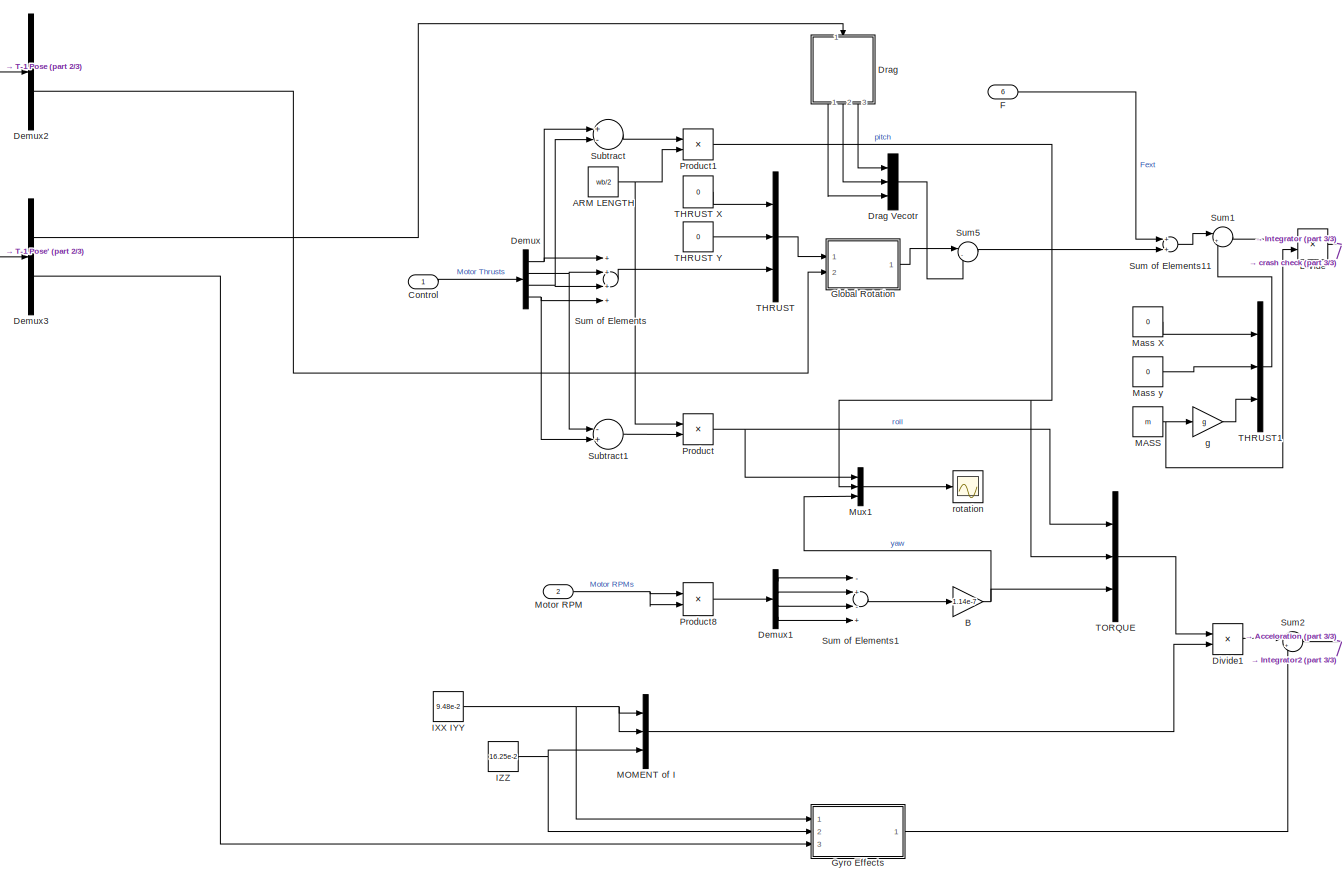
[diagram: root canvas - part 1/3, left side, full height]
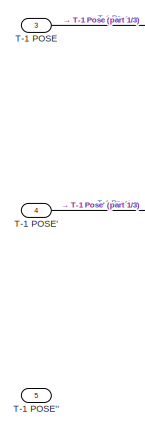
[diagram: root canvas - part 2/3, top left region]
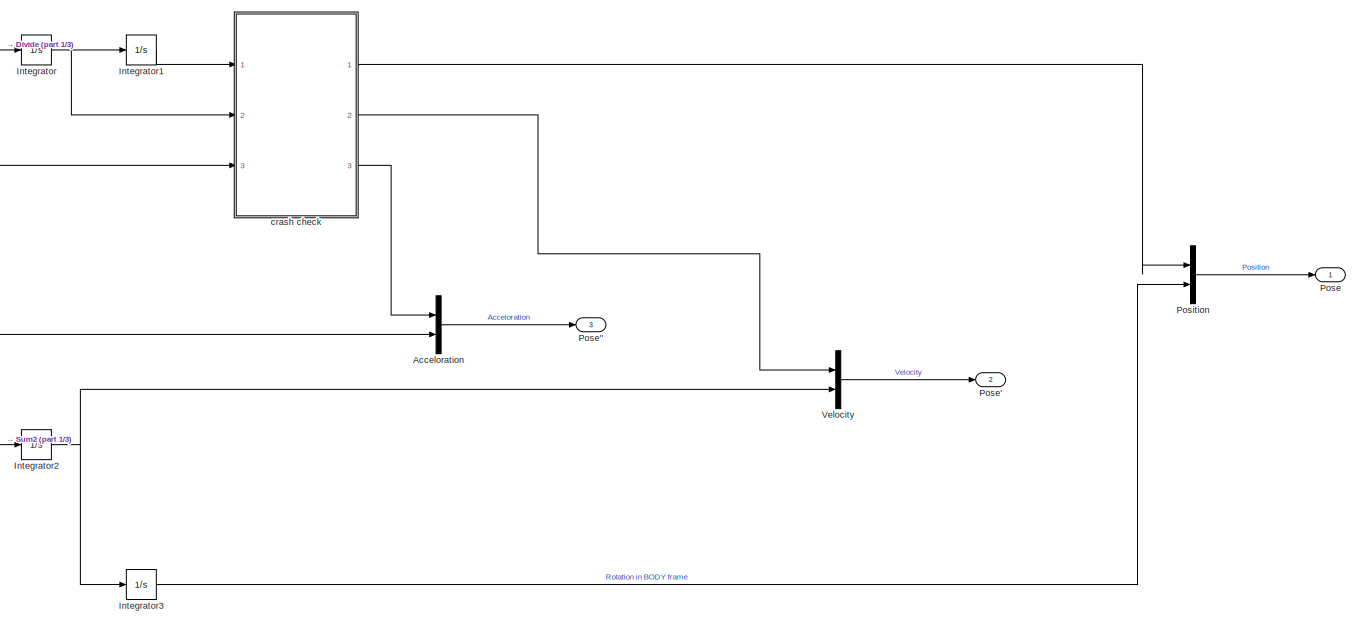
[diagram: root canvas - part 3/3, middle right region]
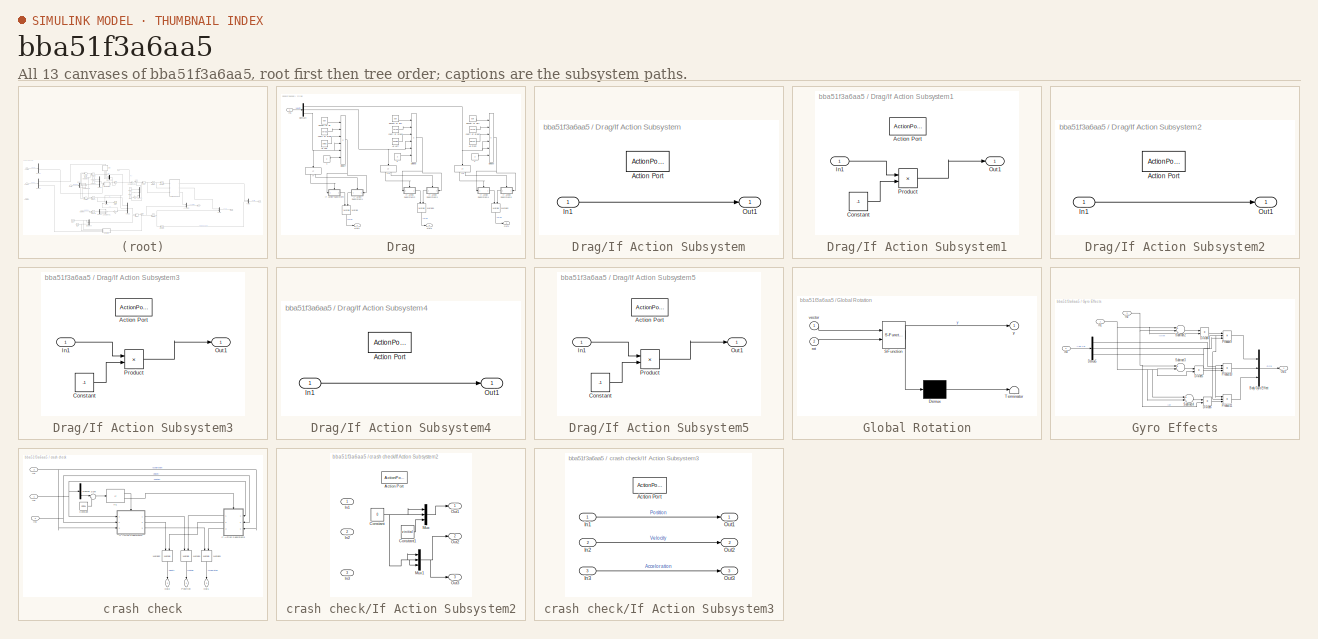
[diagram: thumbnail index - all 13 canvases of the model, root first then tree order]
MODEL slx_bba51f3a6aa5
KIND model
CONFIG AbsTol = auto
CONFIG EnableMultiTasking = off
CONFIG FixedStep = interval
CONFIG MaxStep = auto
CONFIG MinStep = auto
CONFIG RelTol = 1e-3
CONFIG SampleTimeConstraint = Unconstrained
CONFIG Solver = FixedStepAuto
CONFIG SolverName = FixedStepAuto
CONFIG StartTime = 0.0
CONFIG StopTime = 10.0
BLOCK [Constant] ARM LENGTH
  Value = wb/2
BLOCK [Mux] Acceloration
  DisplayOption = bar
  Inputs = 2
  Ports = [2, 1]
BLOCK [Gain] B
  Gain = 1.14e-7
  OutDataTypeStr = Inherit: Inherit via internal rule
  ParamDataTypeStr = Inherit: Inherit via internal rule
  SaturateOnIntegerOverflow = off
BLOCK [Inport] Control
  AttributesFormatString = 4x1 vector motor thrust
  IconDisplay = Port number
  PortDimensions = 4
BLOCK [Demux] Demux
  DisplayOption = bar
  Ports = [1, 4]
BLOCK [Demux] Demux1
  DisplayOption = bar
  Ports = [1, 4]
BLOCK [Demux] Demux2
  DisplayOption = bar
  Outputs = 2
  Ports = [1, 2]
BLOCK [Demux] Demux3
  DisplayOption = bar
  Outputs = 2
  Ports = [1, 2]
BLOCK [Product] Divide
  InputSameDT = off
  Inputs = */
  OutDataTypeStr = Inherit: Inherit via internal rule
  Ports = [2, 1]
  RndMeth = Floor
  SaturateOnIntegerOverflow = off
BLOCK [Product] Divide1
  InputSameDT = off
  Inputs = */
  OutDataTypeStr = Inherit: Inherit via internal rule
  Ports = [2, 1]
  RndMeth = Floor
  SaturateOnIntegerOverflow = off
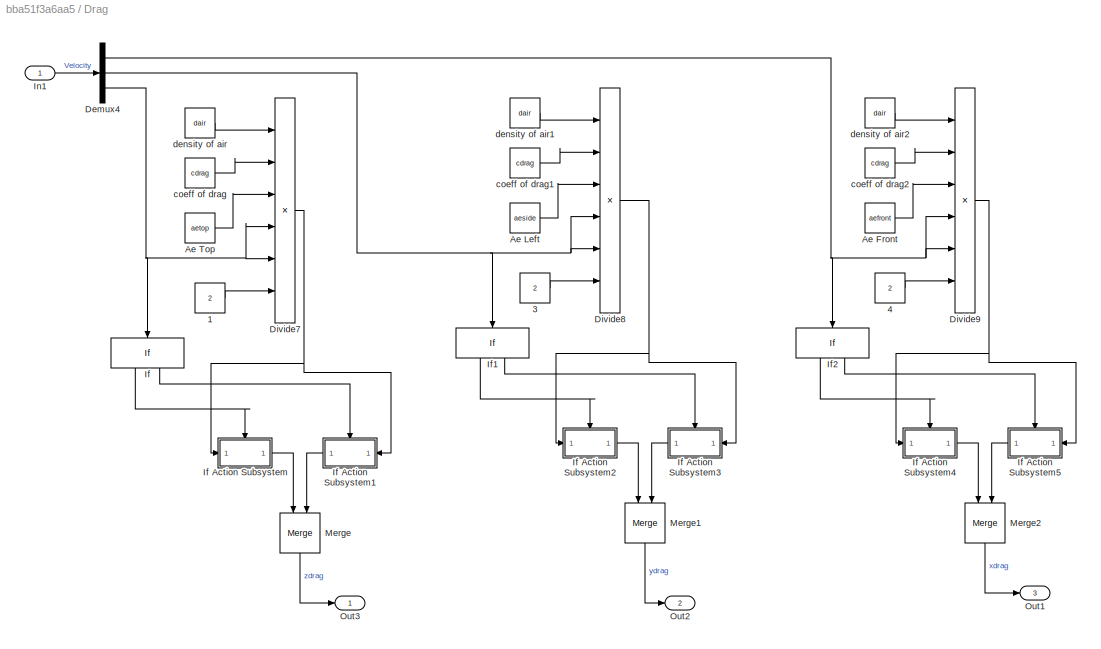
BLOCK [SubSystem] Drag
  Ports = [1, 3]
  RequestExecContextInheritance = off
  Variant = off
BLOCK [Mux] Drag Vecotr
  DisplayOption = bar
  Inputs = 3
  Ports = [3, 1]
BLOCK [Constant] Drag/1
  Value = 2
BLOCK [Constant] Drag/3
  Value = 2
BLOCK [Constant] Drag/4
  Value = 2
BLOCK [Constant] Drag/Ae Front
  Value = aefront
BLOCK [Constant] Drag/Ae Left
  Value = aeside
BLOCK [Constant] Drag/Ae Top
  Value = aetop
BLOCK [Demux] Drag/Demux4
  DisplayOption = bar
  Outputs = 3
  Ports = [1, 3]
BLOCK [Product] Drag/Divide7
  InputSameDT = off
  Inputs = *****/
  OutDataTypeStr = Inherit: Inherit via internal rule
  Ports = [6, 1]
  RndMeth = Floor
  SaturateOnIntegerOverflow = off
BLOCK [Product] Drag/Divide8
  InputSameDT = off
  Inputs = *****/
  OutDataTypeStr = Inherit: Inherit via internal rule
  Ports = [6, 1]
  RndMeth = Floor
  SaturateOnIntegerOverflow = off
BLOCK [Product] Drag/Divide9
  InputSameDT = off
  Inputs = *****/
  OutDataTypeStr = Inherit: Inherit via internal rule
  Ports = [6, 1]
  RndMeth = Floor
  SaturateOnIntegerOverflow = off
BLOCK [If] Drag/If
  IfExpression = u1 < 0
  Ports = [1, 2]
BLOCK [SubSystem] Drag/If Action Subsystem
  Ports = [1, 1, 0, 0, 0, 0, 0, 1]
  RequestExecContextInheritance = off
  TreatAsAtomicUnit = on
  Variant = off
BLOCK [ActionPort] Drag/If Action Subsystem/Action Port
  ActionType = then
BLOCK [Inport] Drag/If Action Subsystem/In1
  IconDisplay = Port number
BLOCK [Outport] Drag/If Action Subsystem/Out1
  IconDisplay = Port number
BLOCK [SubSystem] Drag/If Action Subsystem1
  Ports = [1, 1, 0, 0, 0, 0, 0, 1]
  RequestExecContextInheritance = off
  TreatAsAtomicUnit = on
  Variant = off
BLOCK [ActionPort] Drag/If Action Subsystem1/Action Port
  ActionType = else
BLOCK [Constant] Drag/If Action Subsystem1/Constant
  Value = -1
BLOCK [Inport] Drag/If Action Subsystem1/In1
  IconDisplay = Port number
BLOCK [Outport] Drag/If Action Subsystem1/Out1
  IconDisplay = Port number
BLOCK [Product] Drag/If Action Subsystem1/Product
  InputSameDT = off
  OutDataTypeStr = Inherit: Inherit via internal rule
  Ports = [2, 1]
  RndMeth = Floor
  SaturateOnIntegerOverflow = off
BLOCK [SubSystem] Drag/If Action Subsystem2
  Ports = [1, 1, 0, 0, 0, 0, 0, 1]
  RequestExecContextInheritance = off
  TreatAsAtomicUnit = on
  Variant = off
BLOCK [ActionPort] Drag/If Action Subsystem2/Action Port
  ActionType = then
BLOCK [Inport] Drag/If Action Subsystem2/In1
  IconDisplay = Port number
BLOCK [Outport] Drag/If Action Subsystem2/Out1
  IconDisplay = Port number
BLOCK [SubSystem] Drag/If Action Subsystem3
  Ports = [1, 1, 0, 0, 0, 0, 0, 1]
  RequestExecContextInheritance = off
  TreatAsAtomicUnit = on
  Variant = off
BLOCK [ActionPort] Drag/If Action Subsystem3/Action Port
  ActionType = else
BLOCK [Constant] Drag/If Action Subsystem3/Constant
  Value = -1
BLOCK [Inport] Drag/If Action Subsystem3/In1
  IconDisplay = Port number
BLOCK [Outport] Drag/If Action Subsystem3/Out1
  IconDisplay = Port number
BLOCK [Product] Drag/If Action Subsystem3/Product
  InputSameDT = off
  OutDataTypeStr = Inherit: Inherit via internal rule
  Ports = [2, 1]
  RndMeth = Floor
  SaturateOnIntegerOverflow = off
BLOCK [SubSystem] Drag/If Action Subsystem4
  Ports = [1, 1, 0, 0, 0, 0, 0, 1]
  RequestExecContextInheritance = off
  TreatAsAtomicUnit = on
  Variant = off
BLOCK [ActionPort] Drag/If Action Subsystem4/Action Port
  ActionType = then
BLOCK [Inport] Drag/If Action Subsystem4/In1
  IconDisplay = Port number
BLOCK [Outport] Drag/If Action Subsystem4/Out1
  IconDisplay = Port number
BLOCK [SubSystem] Drag/If Action Subsystem5
  Ports = [1, 1, 0, 0, 0, 0, 0, 1]
  RequestExecContextInheritance = off
  TreatAsAtomicUnit = on
  Variant = off
BLOCK [ActionPort] Drag/If Action Subsystem5/Action Port
  ActionType = else
BLOCK [Constant] Drag/If Action Subsystem5/Constant
  Value = -1
BLOCK [Inport] Drag/If Action Subsystem5/In1
  IconDisplay = Port number
BLOCK [Outport] Drag/If Action Subsystem5/Out1
  IconDisplay = Port number
BLOCK [Product] Drag/If Action Subsystem5/Product
  InputSameDT = off
  OutDataTypeStr = Inherit: Inherit via internal rule
  Ports = [2, 1]
  RndMeth = Floor
  SaturateOnIntegerOverflow = off
BLOCK [If] Drag/If1
  IfExpression = u1 < 0
  Ports = [1, 2]
BLOCK [If] Drag/If2
  IfExpression = u1 < 0
  Ports = [1, 2]
BLOCK [Inport] Drag/In1
  IconDisplay = Signal name
BLOCK [Merge] Drag/Merge
  Ports = [2, 1]
BLOCK [Merge] Drag/Merge1
  Ports = [2, 1]
BLOCK [Merge] Drag/Merge2
  Ports = [2, 1]
BLOCK [Outport] Drag/Out1
  IconDisplay = Signal name
  Port = 3
BLOCK [Outport] Drag/Out2
  IconDisplay = Signal name
  Port = 2
BLOCK [Outport] Drag/Out3
  IconDisplay = Signal name
BLOCK [Constant] Drag/coeff of drag
  Value = cdrag
BLOCK [Constant] Drag/coeff of drag1
  Value = cdrag
BLOCK [Constant] Drag/coeff of drag2
  Value = cdrag
BLOCK [Constant] Drag/density of air
  Value = dair
BLOCK [Constant] Drag/density of air1
  Value = dair
BLOCK [Constant] Drag/density of air2
  Value = dair
BLOCK [Inport] F
  AttributesFormatString = 3x1 external force vector. transpose([x,y,z])
  IconDisplay = Port number
  Port = 6
  PortDimensions = 3
BLOCK [SubSystem] Global Rotation
  ErrorFcn = Stateflow.Translate.translate
  PermitHierarchicalResolution = ExplicitOnly
  Ports = [2, 1]
  RequestExecContextInheritance = off
  SFBlockType = MATLAB Function
  TreatAsAtomicUnit = on
  Variant = off
BLOCK [Demux] Global Rotation/ Demux 
  Outputs = 1
  Ports = [1, 1]
BLOCK [S-Function] Global Rotation/ SFunction 
  EnableBusSupport = on
  FunctionName = sf_sfun
  PortCounts = [2 2]
  Ports = [2, 2]
  SFcnIsStateOwnerBlock = off
  SFunctionDeploymentMode = off
  Tag = Stateflow S-Function QC_Dynamics 2
BLOCK [Terminator] Global Rotation/ Terminator 
BLOCK [Inport] Global Rotation/rot
  IconDisplay = Port number
  Port = 2
BLOCK [Inport] Global Rotation/vector
  IconDisplay = Port number
BLOCK [Outport] Global Rotation/y
  IconDisplay = Port number
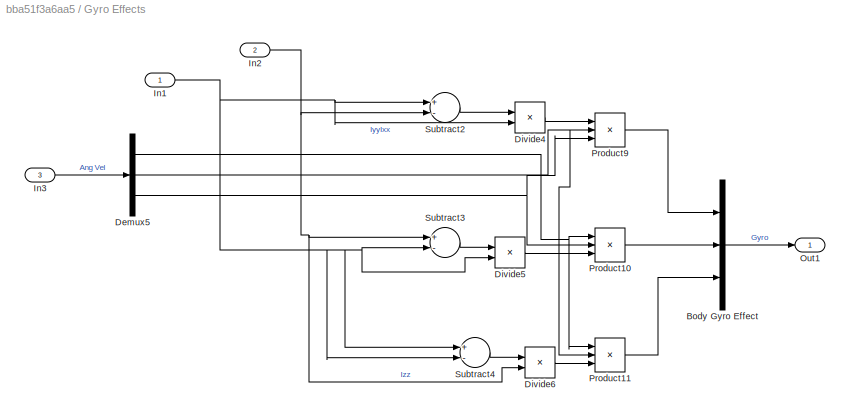
BLOCK [SubSystem] Gyro Effects
  Ports = [3, 1]
  RequestExecContextInheritance = off
  Variant = off
BLOCK [Mux] Gyro Effects/Body Gyro Effect
  DisplayOption = bar
  Inputs = 3
  Ports = [3, 1]
BLOCK [Demux] Gyro Effects/Demux5
  DisplayOption = bar
  Outputs = 3
  Ports = [1, 3]
BLOCK [Product] Gyro Effects/Divide4
  InputSameDT = off
  Inputs = */
  OutDataTypeStr = Inherit: Inherit via internal rule
  Ports = [2, 1]
  RndMeth = Floor
  SaturateOnIntegerOverflow = off
BLOCK [Product] Gyro Effects/Divide5
  InputSameDT = off
  Inputs = */
  OutDataTypeStr = Inherit: Inherit via internal rule
  Ports = [2, 1]
  RndMeth = Floor
  SaturateOnIntegerOverflow = off
BLOCK [Product] Gyro Effects/Divide6
  InputSameDT = off
  Inputs = */
  OutDataTypeStr = Inherit: Inherit via internal rule
  Ports = [2, 1]
  RndMeth = Floor
  SaturateOnIntegerOverflow = off
BLOCK [Inport] Gyro Effects/In1
  IconDisplay = Signal name
BLOCK [Inport] Gyro Effects/In2
  IconDisplay = Signal name
  Port = 2
BLOCK [Inport] Gyro Effects/In3
  IconDisplay = Signal name
  Port = 3
BLOCK [Outport] Gyro Effects/Out1
  IconDisplay = Signal name
BLOCK [Product] Gyro Effects/Product10
  InputSameDT = off
  Inputs = 3
  OutDataTypeStr = Inherit: Inherit via internal rule
  Ports = [3, 1]
  RndMeth = Floor
  SaturateOnIntegerOverflow = off
BLOCK [Product] Gyro Effects/Product11
  InputSameDT = off
  Inputs = 3
  OutDataTypeStr = Inherit: Inherit via internal rule
  Ports = [3, 1]
  RndMeth = Floor
  SaturateOnIntegerOverflow = off
BLOCK [Product] Gyro Effects/Product9
  InputSameDT = off
  Inputs = 3
  OutDataTypeStr = Inherit: Inherit via internal rule
  Ports = [3, 1]
  RndMeth = Floor
  SaturateOnIntegerOverflow = off
BLOCK [Sum] Gyro Effects/Subtract2
  InputSameDT = off
  Inputs = +-
  OutDataTypeStr = Inherit: Inherit via internal rule
  Ports = [2, 1]
  SaturateOnIntegerOverflow = off
BLOCK [Sum] Gyro Effects/Subtract3
  InputSameDT = off
  Inputs = +-
  OutDataTypeStr = Inherit: Inherit via internal rule
  Ports = [2, 1]
  SaturateOnIntegerOverflow = off
BLOCK [Sum] Gyro Effects/Subtract4
  InputSameDT = off
  Inputs = +-
  OutDataTypeStr = Inherit: Inherit via internal rule
  Ports = [2, 1]
  SaturateOnIntegerOverflow = off
BLOCK [Constant] IXX IYY
  Value = 9.48e-2
BLOCK [Constant] IZZ
  Value = 16.25e-2
BLOCK [Integrator] Integrator
  Ports = [1, 1]
BLOCK [Integrator] Integrator1
  Ports = [1, 1]
BLOCK [Integrator] Integrator2
  Ports = [1, 1]
BLOCK [Integrator] Integrator3
  Ports = [1, 1]
BLOCK [Constant] MASS
  Value = m
BLOCK [Mux] MOMENT of I
  DisplayOption = bar
  Inputs = 3
  Ports = [3, 1]
BLOCK [Constant] Mass X
  Value = 0
BLOCK [Constant] Mass y
  Value = 0
BLOCK [Inport] Motor RPM
  AttributesFormatString = 4x1 vector rpm
  IconDisplay = Port number
  Port = 2
  PortDimensions = 4
BLOCK [Mux] Mux1
  DisplayOption = bar
  Inputs = 3
  Ports = [3, 1]
BLOCK [Outport] Pose
  AttributesFormatString = 6x1 true position vector, transpose([x,y,z,phi,theta,psi])
  IconDisplay = Port number
BLOCK [Outport] Pose'
  AttributesFormatString = 6x1 true velocity vector, transpose([x,y,z,phi,theta,psi])
  IconDisplay = Port number
  Port = 2
BLOCK [Outport] Pose''
  AttributesFormatString = 6x1 true acceloration vector, transpose([x,y,z,phi,theta,psi])
  IconDisplay = Port number
  Port = 3
BLOCK [Mux] Position
  DisplayOption = bar
  Inputs = 2
  Ports = [2, 1]
BLOCK [Product] Product
  InputSameDT = off
  OutDataTypeStr = Inherit: Inherit via internal rule
  Ports = [2, 1]
  RndMeth = Floor
  SaturateOnIntegerOverflow = off
BLOCK [Product] Product1
  InputSameDT = off
  OutDataTypeStr = Inherit: Inherit via internal rule
  Ports = [2, 1]
  RndMeth = Floor
  SaturateOnIntegerOverflow = off
BLOCK [Product] Product8
  InputSameDT = off
  OutDataTypeStr = Inherit: Inherit via internal rule
  Ports = [2, 1]
  RndMeth = Floor
  SaturateOnIntegerOverflow = off
BLOCK [Sum] Subtract
  InputSameDT = off
  Inputs = +-
  OutDataTypeStr = Inherit: Inherit via internal rule
  Ports = [2, 1]
  SaturateOnIntegerOverflow = off
BLOCK [Sum] Subtract1
  InputSameDT = off
  Inputs = -+
  OutDataTypeStr = Inherit: Inherit via internal rule
  Ports = [2, 1]
  SaturateOnIntegerOverflow = off
BLOCK [Sum] Sum of Elements
  InputSameDT = off
  Inputs = ++++
  OutDataTypeStr = Inherit: Inherit via internal rule
  Ports = [4, 1]
  SaturateOnIntegerOverflow = off
BLOCK [Sum] Sum of Elements1
  InputSameDT = off
  Inputs = -+-+
  OutDataTypeStr = Inherit: Inherit via internal rule
  Ports = [4, 1]
  SaturateOnIntegerOverflow = off
BLOCK [Sum] Sum of Elements11
  InputSameDT = off
  OutDataTypeStr = Inherit: Inherit via internal rule
  Ports = [2, 1]
  SaturateOnIntegerOverflow = off
BLOCK [Sum] Sum1
  IconShape = round
  InputSameDT = off
  Inputs = |++
  OutDataTypeStr = Inherit: Inherit via internal rule
  Ports = [2, 1]
  SaturateOnIntegerOverflow = off
BLOCK [Sum] Sum2
  IconShape = round
  InputSameDT = off
  Inputs = |+-
  OutDataTypeStr = Inherit: Inherit via internal rule
  Ports = [2, 1]
  SaturateOnIntegerOverflow = off
BLOCK [Sum] Sum5
  IconShape = round
  InputSameDT = off
  Inputs = |-+
  OutDataTypeStr = Inherit: Inherit via internal rule
  Ports = [2, 1]
  SaturateOnIntegerOverflow = off
BLOCK [Inport] T-1 POSE
  AttributesFormatString = 6x1 position vector. transpose([x,y,z,phi,theta,psi])
  IconDisplay = Port number
  Port = 3
  PortDimensions = 6
BLOCK [Inport] T-1 POSE'
  AttributesFormatString = 6x1 velocity vector. transpose([x,y,z,phi,theta,psi])
  IconDisplay = Port number
  Port = 4
  PortDimensions = 6
BLOCK [Inport] T-1 POSE''
  AttributesFormatString = 6x1 acceloration vector. transpose([x,y,z,phi,theta,psi])
  IconDisplay = Port number
  Port = 5
  PortDimensions = 6
BLOCK [Mux] THRUST
  DisplayOption = bar
  Inputs = 3
  Ports = [3, 1]
BLOCK [Constant] THRUST X
  Value = 0
BLOCK [Constant] THRUST Y
  Value = 0
BLOCK [Mux] THRUST1
  DisplayOption = bar
  Inputs = 3
  Ports = [3, 1]
BLOCK [Mux] TORQUE
  DisplayOption = bar
  Inputs = 3
  Ports = [3, 1]
BLOCK [Mux] Velocity
  DisplayOption = bar
  Inputs = 2
  Ports = [2, 1]
BLOCK [SubSystem] crash check
  Ports = [3, 3]
  RequestExecContextInheritance = off
  Variant = off
BLOCK [Constant] crash check/Constant
  Value = zinitial
BLOCK [Demux] crash check/Demux
  DisplayOption = bar
  Outputs = 3
  Ports = [1, 3]
BLOCK [SubSystem] crash check/If Action Subsystem2
  Ports = [3, 3, 0, 0, 0, 0, 0, 1]
  RequestExecContextInheritance = off
  TreatAsAtomicUnit = on
  Variant = off
BLOCK [ActionPort] crash check/If Action Subsystem2/Action Port
  ActionType = then
BLOCK [Constant] crash check/If Action Subsystem2/Constant
  Value = 0
BLOCK [Constant] crash check/If Action Subsystem2/Constant1
  Value = zinitial
BLOCK [Inport] crash check/If Action Subsystem2/In1
  IconDisplay = Signal name
BLOCK [Inport] crash check/If Action Subsystem2/In2
  IconDisplay = Signal name
  Port = 2
BLOCK [Inport] crash check/If Action Subsystem2/In3
  IconDisplay = Signal name
  Port = 3
BLOCK [Mux] crash check/If Action Subsystem2/Mux
  DisplayOption = bar
  Inputs = 3
  Ports = [3, 1]
BLOCK [Mux] crash check/If Action Subsystem2/Mux1
  DisplayOption = bar
  Inputs = 3
  Ports = [3, 1]
BLOCK [Outport] crash check/If Action Subsystem2/Out1
  IconDisplay = Port number
  InitialOutput = [0]
BLOCK [Outport] crash check/If Action Subsystem2/Out2
  IconDisplay = Port number
  InitialOutput = [0]
  Port = 2
BLOCK [Outport] crash check/If Action Subsystem2/Out3
  IconDisplay = Port number
  InitialOutput = [0]
  Port = 3
BLOCK [SubSystem] crash check/If Action Subsystem3
  Ports = [3, 3, 0, 0, 0, 0, 0, 1]
  RequestExecContextInheritance = off
  TreatAsAtomicUnit = on
  Variant = off
BLOCK [ActionPort] crash check/If Action Subsystem3/Action Port
  ActionType = else
BLOCK [Inport] crash check/If Action Subsystem3/In1
  IconDisplay = Port number
BLOCK [Inport] crash check/If Action Subsystem3/In2
  IconDisplay = Port number
  Port = 2
BLOCK [Inport] crash check/If Action Subsystem3/In3
  IconDisplay = Port number
  Port = 3
BLOCK [Outport] crash check/If Action Subsystem3/Out1
  IconDisplay = Port number
BLOCK [Outport] crash check/If Action Subsystem3/Out2
  IconDisplay = Port number
  Port = 2
BLOCK [Outport] crash check/If Action Subsystem3/Out3
  IconDisplay = Port number
  Port = 3
BLOCK [If] crash check/If1
  Ports = [1, 2]
BLOCK [Inport] crash check/In1
  IconDisplay = Signal name
  Port = 3
BLOCK [Inport] crash check/In2
  IconDisplay = Signal name
BLOCK [Inport] crash check/In3
  IconDisplay = Signal name
  Port = 2
BLOCK [Merge] crash check/Merge1
  Ports = [2, 1]
BLOCK [Merge] crash check/Merge2
  Ports = [2, 1]
BLOCK [Merge] crash check/Merge3
  Ports = [2, 1]
BLOCK [Outport] crash check/Out1
  IconDisplay = Signal name
  Port = 3
BLOCK [Outport] crash check/Out2
  IconDisplay = Signal name
  Port = 2
BLOCK [Outport] crash check/Position
  IconDisplay = Signal name
BLOCK [Sum] crash check/Sum
  IconShape = round
  InputSameDT = off
  Inputs = |+-
  OutDataTypeStr = Inherit: Inherit via internal rule
  Ports = [2, 1]
  SaturateOnIntegerOverflow = off
BLOCK [Gain] g
  Gain = g
  OutDataTypeStr = Inherit: Inherit via internal rule
  ParamDataTypeStr = Inherit: Inherit via internal rule
  SaturateOnIntegerOverflow = off
BLOCK [Scope] rotation
  NumInputPorts = 1
  Ports = [1]
  ScopeSpecificationString = Simulink.scopes.TimeScopeBlockCfg('CurrentConfiguration', extmgr.ConfigurationSet(extmgr.Configuration('Core','General UI',true),extmgr.Configuration('Core','Source UI',true),extmgr.Configuration('Sources','WiredSimulink',true),extmgr.Configuration('Visuals','Time Domain',true,'SerializedDisplays',{struct('MinYLimReal','-0.00023','MaxYLimReal','0.00204','YLabelReal','','MinYLimMag','0.00000','MaxY...<+1347ch>
NET ARM LENGTH:1 -> Product1:2, Product:1
LINE Acceloration:1 -> Pose'':1
NET B:1 -> Mux1:3, TORQUE:3
LINE Control:1 -> Demux:1
LINE Demux1:1 -> Sum of Elements1:1
LINE Demux1:2 -> Sum of Elements1:2
LINE Demux1:3 -> Sum of Elements1:3
LINE Demux1:4 -> Sum of Elements1:4
LINE Demux2:2 -> Global Rotation:2
LINE Demux3:1 -> Drag:1
LINE Demux3:2 -> Gyro Effects:3
NET Demux:1 -> Subtract:1, Sum of Elements:1
NET Demux:2 -> Subtract1:1, Sum of Elements:2
NET Demux:3 -> Subtract:2, Sum of Elements:3
NET Demux:4 -> Subtract1:2, Sum of Elements:4
LINE Divide1:1 -> Sum2:1
NET Divide:1 -> Integrator:1, crash check:3
LINE Drag Vecotr:1 -> Sum5:2
LINE Drag/1:1 -> Drag/Divide7:6
LINE Drag/3:1 -> Drag/Divide8:6
LINE Drag/4:1 -> Drag/Divide9:6
LINE Drag/Ae Front:1 -> Drag/Divide9:3
LINE Drag/Ae Left:1 -> Drag/Divide8:3
LINE Drag/Ae Top:1 -> Drag/Divide7:3
NET Drag/Demux4:1 -> Drag/Divide9:4, Drag/Divide9:5, Drag/If2:1
NET Drag/Demux4:2 -> Drag/Divide8:4, Drag/Divide8:5, Drag/If1:1
NET Drag/Demux4:3 -> Drag/Divide7:4, Drag/Divide7:5, Drag/If:1
NET Drag/Divide7:1 -> Drag/If Action Subsystem1:1, Drag/If Action Subsystem:1
NET Drag/Divide8:1 -> Drag/If Action Subsystem2:1, Drag/If Action Subsystem3:1
NET Drag/Divide9:1 -> Drag/If Action Subsystem4:1, Drag/If Action Subsystem5:1
LINE Drag/If Action Subsystem/In1:1 -> Drag/If Action Subsystem/Out1:1
LINE Drag/If Action Subsystem1/Constant:1 -> Drag/If Action Subsystem1/Product:2
LINE Drag/If Action Subsystem1/In1:1 -> Drag/If Action Subsystem1/Product:1
LINE Drag/If Action Subsystem1/Product:1 -> Drag/If Action Subsystem1/Out1:1
LINE Drag/If Action Subsystem1:1 -> Drag/Merge:2
LINE Drag/If Action Subsystem2/In1:1 -> Drag/If Action Subsystem2/Out1:1
LINE Drag/If Action Subsystem2:1 -> Drag/Merge1:1
LINE Drag/If Action Subsystem3/Constant:1 -> Drag/If Action Subsystem3/Product:2
LINE Drag/If Action Subsystem3/In1:1 -> Drag/If Action Subsystem3/Product:1
LINE Drag/If Action Subsystem3/Product:1 -> Drag/If Action Subsystem3/Out1:1
LINE Drag/If Action Subsystem3:1 -> Drag/Merge1:2
LINE Drag/If Action Subsystem4/In1:1 -> Drag/If Action Subsystem4/Out1:1
LINE Drag/If Action Subsystem4:1 -> Drag/Merge2:1
LINE Drag/If Action Subsystem5/Constant:1 -> Drag/If Action Subsystem5/Product:2
LINE Drag/If Action Subsystem5/In1:1 -> Drag/If Action Subsystem5/Product:1
LINE Drag/If Action Subsystem5/Product:1 -> Drag/If Action Subsystem5/Out1:1
LINE Drag/If Action Subsystem5:1 -> Drag/Merge2:2
LINE Drag/If Action Subsystem:1 -> Drag/Merge:1
LINE Drag/If1:1 -> Drag/If Action Subsystem2:ifaction
LINE Drag/If1:2 -> Drag/If Action Subsystem3:ifaction
LINE Drag/If2:1 -> Drag/If Action Subsystem4:ifaction
LINE Drag/If2:2 -> Drag/If Action Subsystem5:ifaction
LINE Drag/If:1 -> Drag/If Action Subsystem:ifaction
LINE Drag/If:2 -> Drag/If Action Subsystem1:ifaction
LINE Drag/In1:1 -> Drag/Demux4:1
LINE Drag/Merge1:1 -> Drag/Out2:1
LINE Drag/Merge2:1 -> Drag/Out1:1
LINE Drag/Merge:1 -> Drag/Out3:1
LINE Drag/coeff of drag1:1 -> Drag/Divide8:2
LINE Drag/coeff of drag2:1 -> Drag/Divide9:2
LINE Drag/coeff of drag:1 -> Drag/Divide7:2
LINE Drag/density of air1:1 -> Drag/Divide8:1
LINE Drag/density of air2:1 -> Drag/Divide9:1
LINE Drag/density of air:1 -> Drag/Divide7:1
LINE Drag:1 -> Drag Vecotr:3
LINE Drag:2 -> Drag Vecotr:2
LINE Drag:3 -> Drag Vecotr:1
LINE F:1 -> Sum of Elements11:1
LINE Global Rotation:1 -> Sum5:1
LINE Gyro Effects/Body Gyro Effect:1 -> Gyro Effects/Out1:1
NET Gyro Effects/Demux5:1 -> Gyro Effects/Product10:1, Gyro Effects/Product11:1
NET Gyro Effects/Demux5:2 -> Gyro Effects/Product11:2, Gyro Effects/Product9:2
NET Gyro Effects/Demux5:3 -> Gyro Effects/Product10:2, Gyro Effects/Product9:3
LINE Gyro Effects/Divide4:1 -> Gyro Effects/Product9:1
LINE Gyro Effects/Divide5:1 -> Gyro Effects/Product10:3
LINE Gyro Effects/Divide6:1 -> Gyro Effects/Product11:3
NET Gyro Effects/In1:1 -> Gyro Effects/Divide4:2, Gyro Effects/Divide5:2, Gyro Effects/Subtract2:1, Gyro Effects/Subtract3:2, Gyro Effects/Subtract4:1, Gyro Effects/Subtract4:2
NET Gyro Effects/In2:1 -> Gyro Effects/Divide6:2, Gyro Effects/Subtract2:2, Gyro Effects/Subtract3:1
LINE Gyro Effects/In3:1 -> Gyro Effects/Demux5:1
LINE Gyro Effects/Product10:1 -> Gyro Effects/Body Gyro Effect:2
LINE Gyro Effects/Product11:1 -> Gyro Effects/Body Gyro Effect:3
LINE Gyro Effects/Product9:1 -> Gyro Effects/Body Gyro Effect:1
LINE Gyro Effects/Subtract2:1 -> Gyro Effects/Divide4:1
LINE Gyro Effects/Subtract3:1 -> Gyro Effects/Divide5:1
LINE Gyro Effects/Subtract4:1 -> Gyro Effects/Divide6:1
LINE Gyro Effects:1 -> Sum2:2
NET IXX IYY:1 -> Gyro Effects:1, MOMENT of I:1, MOMENT of I:2
NET IZZ:1 -> Gyro Effects:2, MOMENT of I:3
LINE Integrator1:1 -> crash check:1
NET Integrator2:1 -> Integrator3:1, Velocity:2
LINE Integrator3:1 -> Position:2
NET Integrator:1 -> Integrator1:1, crash check:2
NET MASS:1 -> Divide:2, g:1
LINE MOMENT of I:1 -> Divide1:2
LINE Mass X:1 -> THRUST1:1
LINE Mass y:1 -> THRUST1:2
NET Motor RPM:1 -> Product8:1, Product8:2
LINE Mux1:1 -> rotation:1
LINE Position:1 -> Pose:1
NET Product1:1 -> Mux1:2, TORQUE:2
LINE Product8:1 -> Demux1:1
NET Product:1 -> Mux1:1, TORQUE:1
LINE Subtract1:1 -> Product:2
LINE Subtract:1 -> Product1:1
LINE Sum of Elements11:1 -> Sum1:1
LINE Sum of Elements1:1 -> B:1
LINE Sum of Elements:1 -> THRUST:3
LINE Sum1:1 -> Divide:1
NET Sum2:1 -> Acceloration:2, Integrator2:1
LINE Sum5:1 -> Sum of Elements11:2
LINE T-1 POSE':1 -> Demux3:1
LINE T-1 POSE:1 -> Demux2:1
LINE THRUST X:1 -> THRUST:1
LINE THRUST Y:1 -> THRUST:2
LINE THRUST1:1 -> Sum1:2
LINE THRUST:1 -> Global Rotation:1
LINE TORQUE:1 -> Divide1:1
LINE Velocity:1 -> Pose':1
LINE crash check/Constant:1 -> crash check/Sum:2
LINE crash check/Demux:3 -> crash check/Sum:1
LINE crash check/If Action Subsystem2/Constant1:1 -> crash check/If Action Subsystem2/Mux:3
NET crash check/If Action Subsystem2/Constant:1 -> crash check/If Action Subsystem2/Mux1:1, crash check/If Action Subsystem2/Mux1:2, crash check/If Action Subsystem2/Mux1:3, crash check/If Action Subsystem2/Mux:1, crash check/If Action Subsystem2/Mux:2
NET crash check/If Action Subsystem2/Mux1:1 -> crash check/If Action Subsystem2/Out2:1, crash check/If Action Subsystem2/Out3:1
LINE crash check/If Action Subsystem2/Mux:1 -> crash check/If Action Subsystem2/Out1:1
LINE crash check/If Action Subsystem2:1 -> crash check/Merge1:1
LINE crash check/If Action Subsystem2:2 -> crash check/Merge2:1
LINE crash check/If Action Subsystem2:3 -> crash check/Merge3:1
LINE crash check/If Action Subsystem3/In1:1 -> crash check/If Action Subsystem3/Out1:1
LINE crash check/If Action Subsystem3/In2:1 -> crash check/If Action Subsystem3/Out2:1
LINE crash check/If Action Subsystem3/In3:1 -> crash check/If Action Subsystem3/Out3:1
LINE crash check/If Action Subsystem3:1 -> crash check/Merge1:2
LINE crash check/If Action Subsystem3:2 -> crash check/Merge2:2
LINE crash check/If Action Subsystem3:3 -> crash check/Merge3:2
LINE crash check/If1:1 -> crash check/If Action Subsystem2:ifaction
LINE crash check/If1:2 -> crash check/If Action Subsystem3:ifaction
NET crash check/In1:1 -> crash check/If Action Subsystem2:3, crash check/If Action Subsystem3:3
NET crash check/In2:1 -> crash check/Demux:1, crash check/If Action Subsystem2:1, crash check/If Action Subsystem3:1
NET crash check/In3:1 -> crash check/If Action Subsystem2:2, crash check/If Action Subsystem3:2
LINE crash check/Merge1:1 -> crash check/Position:1
LINE crash check/Merge2:1 -> crash check/Out2:1
LINE crash check/Merge3:1 -> crash check/Out1:1
LINE crash check/Sum:1 -> crash check/If1:1
LINE crash check:1 -> Position:1
LINE crash check:2 -> Velocity:1
LINE crash check:3 -> Acceloration:1
LINE g:1 -> THRUST1:3
note: NET lines group one-source signal fan-out (src -> all destinations, sorted); 1:1 wires keep LINE
CHART Global Rotation states=1 transitions=1
  STATE_LABEL 'eML_blk_kernel()'
  STATE_LABEL 'SCRIPT:\nfunction y = fcn(vector, rot)\n\n\n%R=[1,0,0;0,cos(rot(1)),-sin(rot(1));0,sin(rot(1)),cos(rot(1))]*[cos(rot(2)),0, -sin(rot(2));0,1,0;sin(rot(2)),0,cos(rot(2))]*[cos(rot(3)),-sin(rot(3)),0;sin(rot(3)),cos(rot(3)),0;0,0,1];\n\nRx=[1,0,0;0,cos(rot(1)),-sin(rot(1));0,sin(rot(1)),cos(rot(1))];\n%Ry=[cos(rot(2)),-sin(rot(2)),0;sin(rot(2)),cos(rot(2)),0;0,0,1];\nRy=[cos(rot(2)),0, sin(rot(2));0,1,0;-si...<+127ch>'
